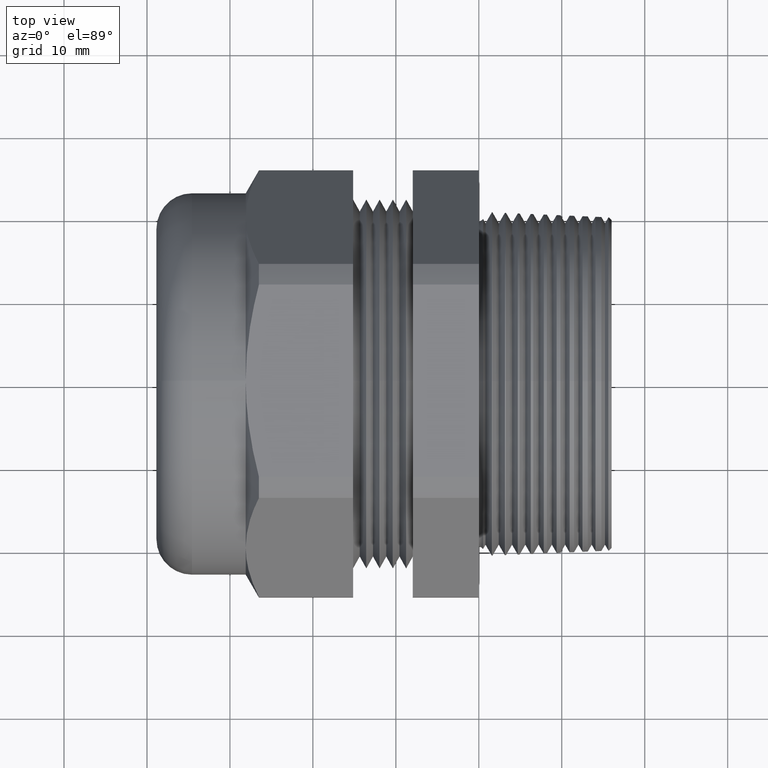
[diagram: clean part render]
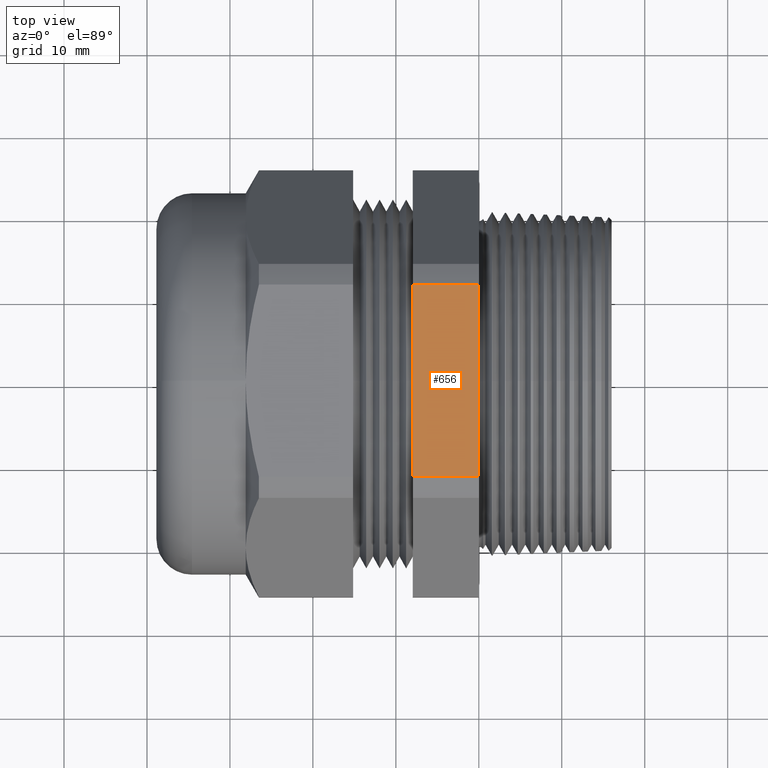
[diagram: same view with one face highlighted and labeled with its STEP entity id]
A machine part, top view. The second image highlights one B-rep face of the part: STEP entity #656.
In plain terms, the highlighted planar face has unit normal (0, 0, 1).
Its self-contained STEP definition (entity closure, byte-faithful):
#154 = VERTEX_POINT ( 'NONE', #1626 ) ;
#217 = EDGE_CURVE ( 'NONE', #154, #222, #1821, .T. ) ;
#222 = VERTEX_POINT ( 'NONE', #1807 ) ;
#303 = VERTEX_POINT ( 'NONE', #1932 ) ;
#305 = EDGE_CURVE ( 'NONE', #306, #303, #1931, .T. ) ;
#306 = VERTEX_POINT ( 'NONE', #1990 ) ;
#579 = EDGE_CURVE ( 'NONE', #306, #154, #2568, .T. ) ;
#656 = ADVANCED_FACE ( 'NONE', ( #2646 ), #2641, .T. ) ;
#657 = ORIENTED_EDGE ( 'NONE', *, *, #305, .T. ) ;
#667 = EDGE_CURVE ( 'NONE', #303, #222, #2543, .T. ) ;
#915 = EDGE_LOOP ( 'NONE', ( #657, #924, #938, #937 ) ) ;
#924 = ORIENTED_EDGE ( 'NONE', *, *, #667, .T. ) ;
#937 = ORIENTED_EDGE ( 'NONE', *, *, #579, .F. ) ;
#938 = ORIENTED_EDGE ( 'NONE', *, *, #217, .F. ) ;
#1626 = CARTESIAN_POINT ( 'NONE',  ( 0.0000000000000000000, 0.4564646317076493900, 0.9050000000000001400 ) ) ;
#1807 = CARTESIAN_POINT ( 'NONE',  ( 0.0000000000000000000, -0.4564646317076495000, 0.9050000000000000300 ) ) ;
#1818 = DIRECTION ( 'NONE',  ( 0.0000000000000000000, -1.000000000000000000, 0.0000000000000000000 ) ) ;
#1819 = VECTOR ( 'NONE', #1818, 39.37007874015748100 ) ;
#1820 = CARTESIAN_POINT ( 'NONE',  ( 0.0000000000000000000, 0.4564646317076495000, 0.9050000000000000300 ) ) ;
#1821 = LINE ( 'NONE', #1820, #1819 ) ;
#1928 = DIRECTION ( 'NONE',  ( 0.0000000000000000000, -1.000000000000000000, 0.0000000000000000000 ) ) ;
#1929 = VECTOR ( 'NONE', #1928, 39.37007874015748100 ) ;
#1930 = CARTESIAN_POINT ( 'NONE',  ( -0.3134328358208955400, 0.8744999999999999400, 0.9050000000000000300 ) ) ;
#1931 = LINE ( 'NONE', #1930, #1929 ) ;
#1932 = CARTESIAN_POINT ( 'NONE',  ( -0.3134328358208957600, -0.4564646317076495000, 0.9050000000000000300 ) ) ;
#1990 = CARTESIAN_POINT ( 'NONE',  ( -0.3134328358208957600, 0.4564646317076493900, 0.9050000000000001400 ) ) ;
#2540 = DIRECTION ( 'NONE',  ( 1.000000000000000000, 0.0000000000000000000, 0.0000000000000000000 ) ) ;
#2541 = VECTOR ( 'NONE', #2540, 39.37007874015748100 ) ;
#2542 = CARTESIAN_POINT ( 'NONE',  ( -4.001812670979164800, -0.4564646317076495000, 0.9050000000000000300 ) ) ;
#2543 = LINE ( 'NONE', #2542, #2541 ) ;
#2550 = DIRECTION ( 'NONE',  ( 1.000000000000000000, 0.0000000000000000000, 0.0000000000000000000 ) ) ;
#2551 = DIRECTION ( 'NONE',  ( 0.0000000000000000000, 0.0000000000000000000, 1.000000000000000000 ) ) ;
#2566 = DIRECTION ( 'NONE',  ( 1.000000000000000000, 0.0000000000000000000, 0.0000000000000000000 ) ) ;
#2567 = CARTESIAN_POINT ( 'NONE',  ( -4.001812670979164800, 0.4564646317076493900, 0.9050000000000001400 ) ) ;
#2568 = LINE ( 'NONE', #2567, #2636 ) ;
#2636 = VECTOR ( 'NONE', #2566, 39.37007874015748100 ) ;
#2639 = CARTESIAN_POINT ( 'NONE',  ( -4.001812670979164800, 0.4564646317076495000, 0.9050000000000000300 ) ) ;
#2640 = AXIS2_PLACEMENT_3D ( 'NONE', #2639, #2551, #2550 ) ;
#2641 = PLANE ( 'NONE',  #2640 ) ;
#2646 = FACE_OUTER_BOUND ( 'NONE', #915, .T. ) ;